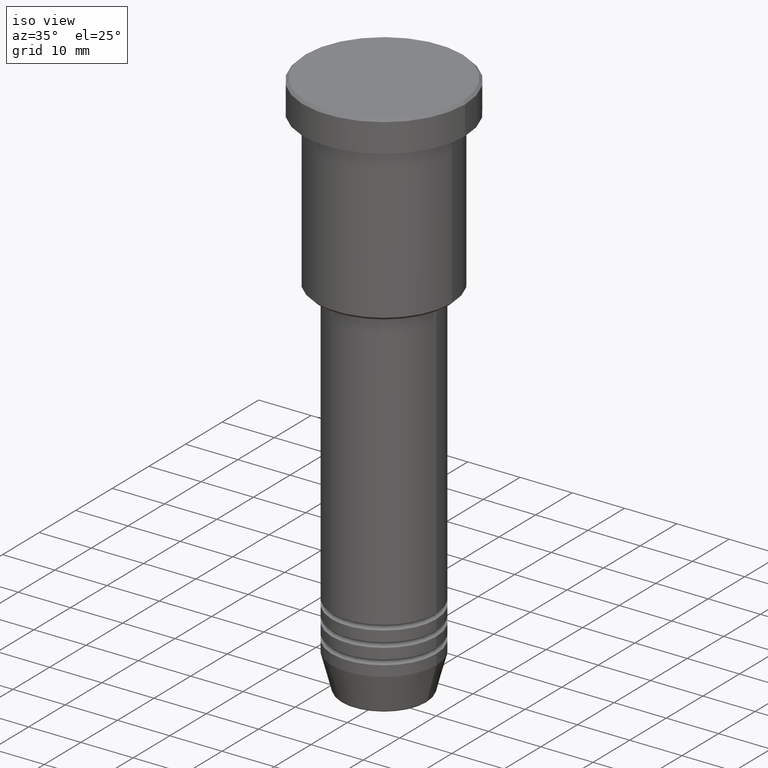
[diagram: clean part render]
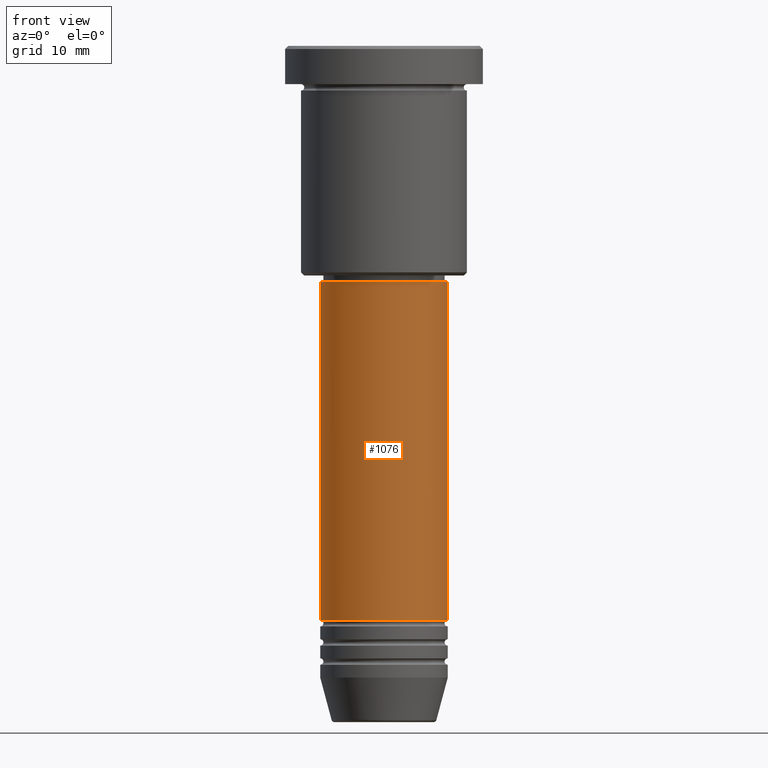
[diagram: tour spotlight — one face highlighted and labeled with its STEP entity id]
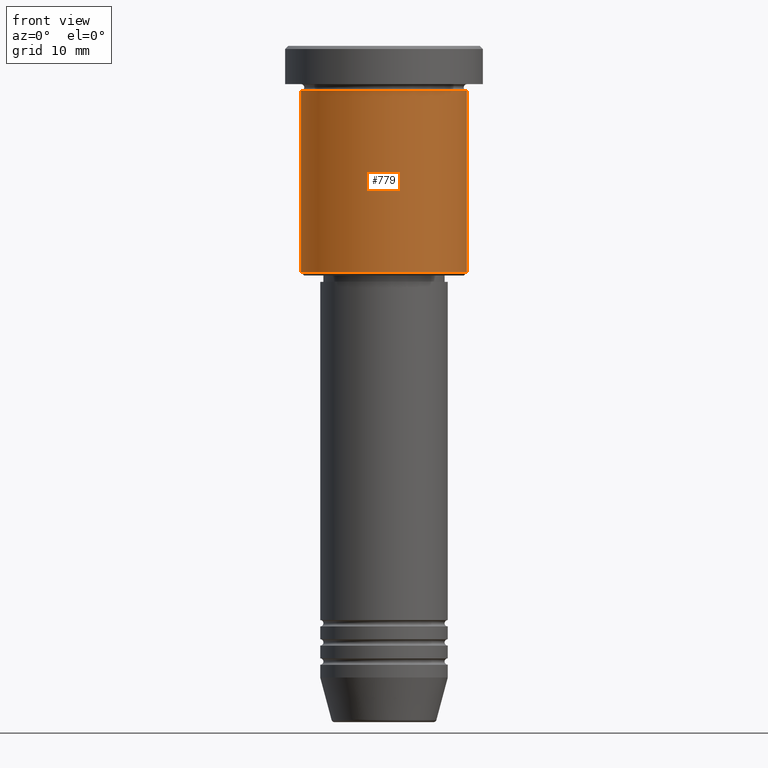
[diagram: tour spotlight — one face highlighted and labeled with its STEP entity id]
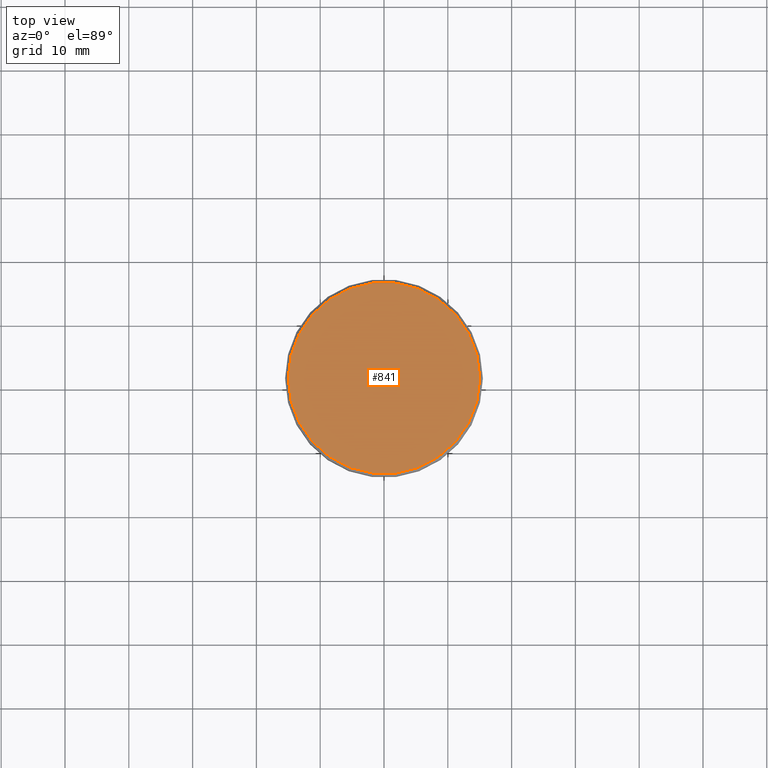
[diagram: tour spotlight — one face highlighted and labeled with its STEP entity id]
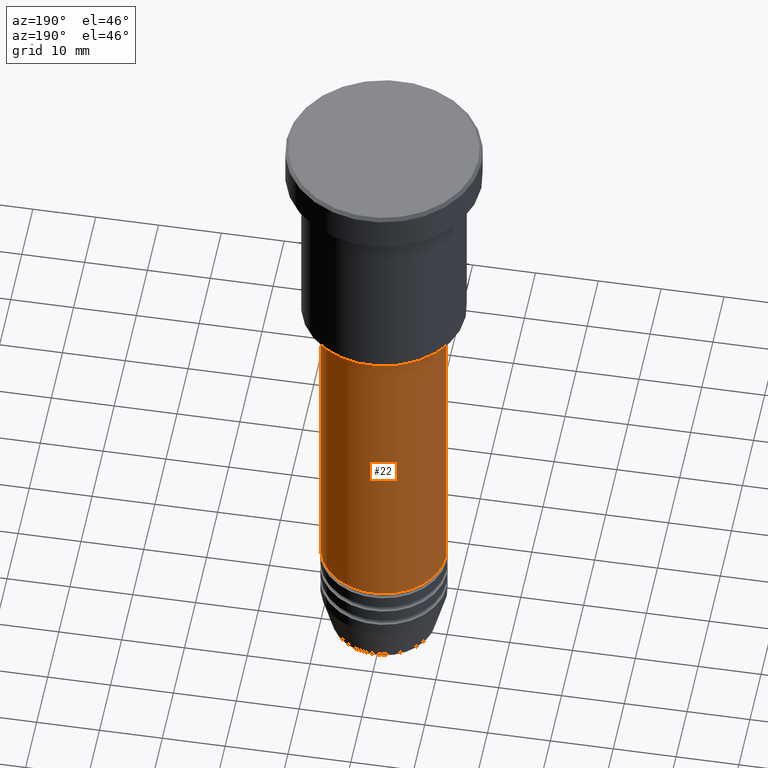
[diagram: tour spotlight — one face highlighted and labeled with its STEP entity id]
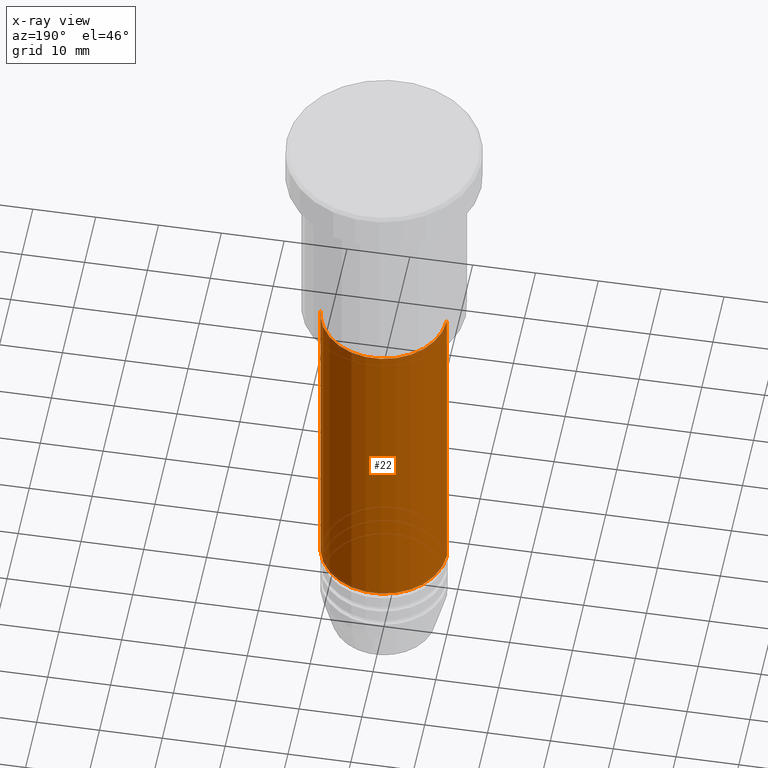
[diagram: x-ray of the same camera — body ghosted, this tour face saturated]
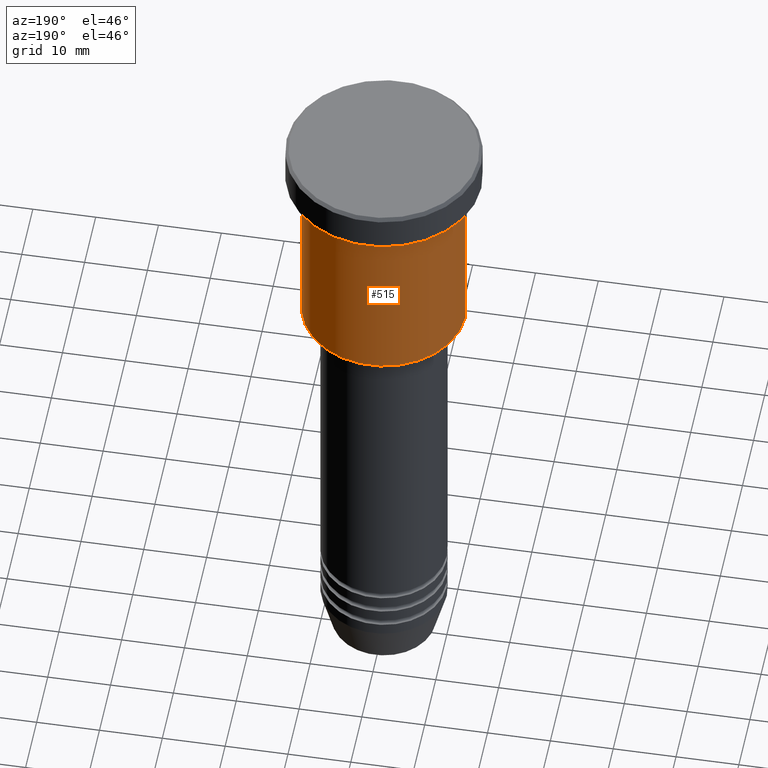
[diagram: tour spotlight — one face highlighted and labeled with its STEP entity id]
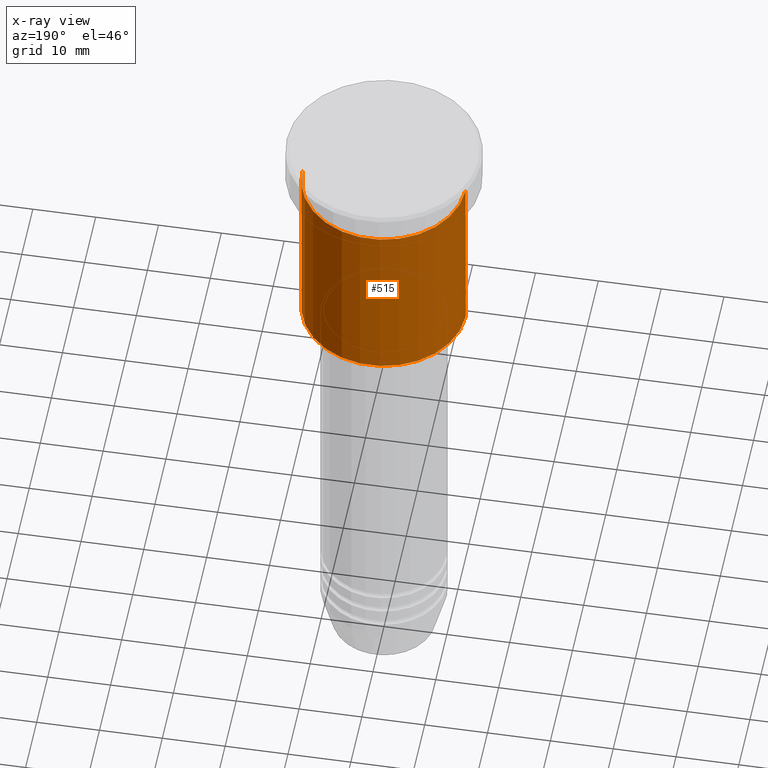
[diagram: x-ray of the same camera — body ghosted, this tour face saturated]
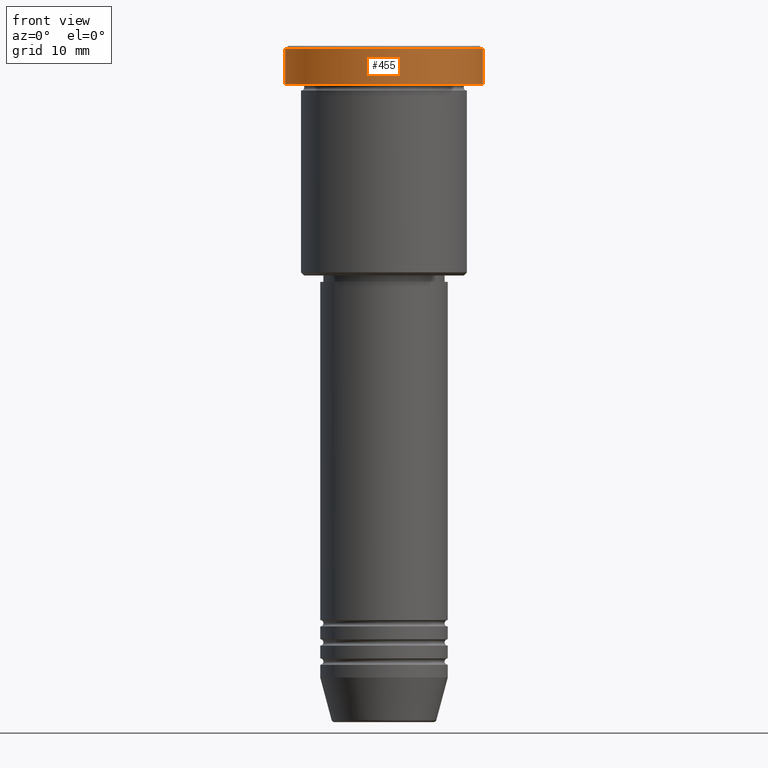
[diagram: tour spotlight — one face highlighted and labeled with its STEP entity id]
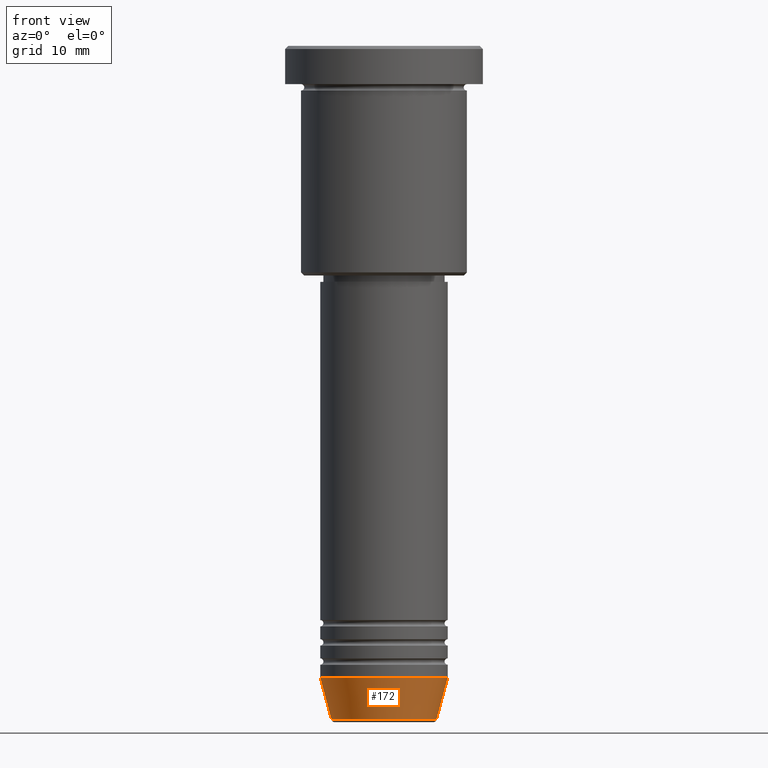
[diagram: tour spotlight — one face highlighted and labeled with its STEP entity id]
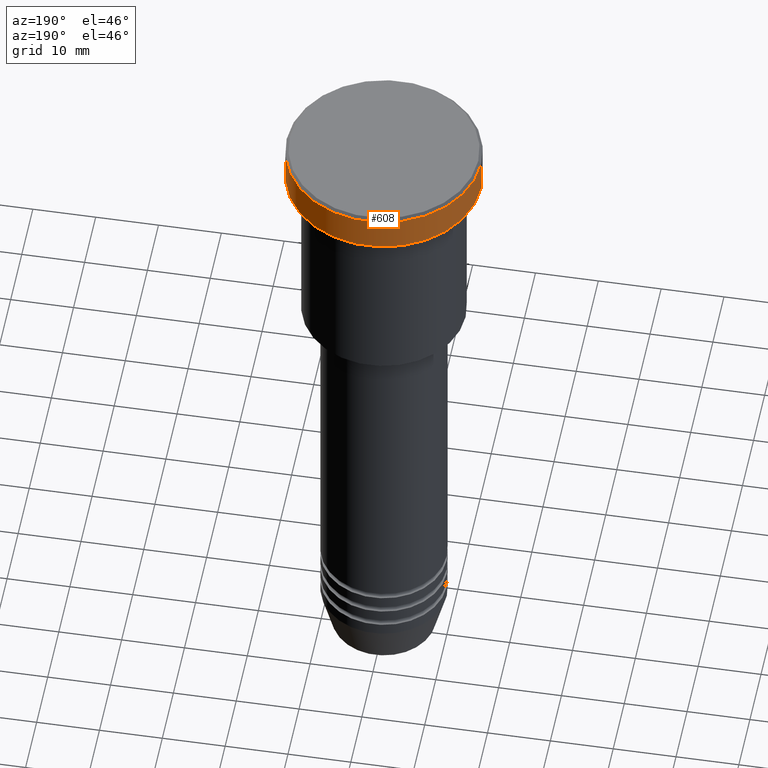
[diagram: tour spotlight — one face highlighted and labeled with its STEP entity id]
A machine part: a face-by-face anatomy tour. The part has 43 B-rep faces; the first image is the clean iso view, then the 8 largest visible faces are spotlighted one at a time (largest first), each with its STEP entity span.

Face 1 — front view, entity #1076. In plain terms, the highlighted cylindrical surface (partial cylindrical patch) has radius 10 mm, axis along (-0, -0, 1).
Definition (entity closure, byte-faithful):
#66 = VECTOR ( 'NONE', #270, 1000.000000000000000 ) ;
#100 = EDGE_CURVE ( 'NONE', #171, #427, #1174, .T. ) ;
#132 = CARTESIAN_POINT ( 'NONE',  ( -10.00000000000000000, 1.224646799147353256E-15, -89.99999999999997158 ) ) ;
#171 = VERTEX_POINT ( 'NONE', #132 ) ;
#238 = LINE ( 'NONE', #600, #357 ) ;
#270 = DIRECTION ( 'NONE',  ( -0.000000000000000000, -0.000000000000000000, 1.000000000000000000 ) ) ;
#337 = AXIS2_PLACEMENT_3D ( 'NONE', #383, #1111, #778 ) ;
#357 = VECTOR ( 'NONE', #1162, 1000.000000000000000 ) ;
#365 = LINE ( 'NONE', #1088, #66 ) ;
#383 = CARTESIAN_POINT ( 'NONE',  ( 0.000000000000000000, 0.000000000000000000, -37.00000000000000000 ) ) ;
#393 = CARTESIAN_POINT ( 'NONE',  ( 0.000000000000000000, 0.000000000000000000, -89.99999999999997158 ) ) ;
#398 = VERTEX_POINT ( 'NONE', #922 ) ;
#413 = CARTESIAN_POINT ( 'NONE',  ( 0.000000000000000000, 0.000000000000000000, 0.000000000000000000 ) ) ;
#426 = EDGE_CURVE ( 'NONE', #427, #1038, #365, .T. ) ;
#427 = VERTEX_POINT ( 'NONE', #838 ) ;
#441 = AXIS2_PLACEMENT_3D ( 'NONE', #413, #808, #685 ) ;
#472 = EDGE_CURVE ( 'NONE', #398, #1038, #897, .T. ) ;
#547 = ORIENTED_EDGE ( 'NONE', *, *, #676, .F. ) ;
#597 = CYLINDRICAL_SURFACE ( 'NONE', #441, 10.00000000000000000 ) ;
#600 = CARTESIAN_POINT ( 'NONE',  ( -10.00000000000000000, 1.224646799147353256E-15, 0.000000000000000000 ) ) ;
#639 = ORIENTED_EDGE ( 'NONE', *, *, #472, .F. ) ;
#676 = EDGE_CURVE ( 'NONE', #171, #398, #238, .T. ) ;
#678 = DIRECTION ( 'NONE',  ( -0.000000000000000000, -0.000000000000000000, 1.000000000000000000 ) ) ;
#683 = DIRECTION ( 'NONE',  ( 1.000000000000000000, 0.000000000000000000, 0.000000000000000000 ) ) ;
#685 = DIRECTION ( 'NONE',  ( 1.000000000000000000, 0.000000000000000000, 0.000000000000000000 ) ) ;
#778 = DIRECTION ( 'NONE',  ( 1.000000000000000000, 0.000000000000000000, 0.000000000000000000 ) ) ;
#808 = DIRECTION ( 'NONE',  ( -0.000000000000000000, -0.000000000000000000, 1.000000000000000000 ) ) ;
#838 = CARTESIAN_POINT ( 'NONE',  ( 10.00000000000000000, 0.000000000000000000, -89.99999999999997158 ) ) ;
#844 = AXIS2_PLACEMENT_3D ( 'NONE', #393, #678, #683 ) ;
#856 = CARTESIAN_POINT ( 'NONE',  ( 10.00000000000000000, 0.000000000000000000, -37.00000000000000000 ) ) ;
#897 = CIRCLE ( 'NONE', #337, 10.00000000000000000 ) ;
#906 = EDGE_LOOP ( 'NONE', ( #547, #1095, #1053, #639 ) ) ;
#922 = CARTESIAN_POINT ( 'NONE',  ( -10.00000000000000000, 1.224646799147353256E-15, -37.00000000000000000 ) ) ;
#977 = FACE_OUTER_BOUND ( 'NONE', #906, .T. ) ;
#1038 = VERTEX_POINT ( 'NONE', #856 ) ;
#1053 = ORIENTED_EDGE ( 'NONE', *, *, #426, .T. ) ;
#1076 = ADVANCED_FACE ( 'NONE', ( #977 ), #597, .T. ) ;
#1088 = CARTESIAN_POINT ( 'NONE',  ( 10.00000000000000000, 0.000000000000000000, 0.000000000000000000 ) ) ;
#1095 = ORIENTED_EDGE ( 'NONE', *, *, #100, .T. ) ;
#1111 = DIRECTION ( 'NONE',  ( -0.000000000000000000, -0.000000000000000000, 1.000000000000000000 ) ) ;
#1162 = DIRECTION ( 'NONE',  ( -0.000000000000000000, -0.000000000000000000, 1.000000000000000000 ) ) ;
#1174 = CIRCLE ( 'NONE', #844, 10.00000000000000000 ) ;

Face 2 — front view, entity #779. In plain terms, the highlighted cylindrical surface (partial cylindrical patch) has radius 13 mm, axis along (-0, -0, 1).
Definition (entity closure, byte-faithful):
#48 = CARTESIAN_POINT ( 'NONE',  ( -13.00000000000000000, 1.592040838891559095E-15, -35.49999999999999289 ) ) ;
#55 = VERTEX_POINT ( 'NONE', #1107 ) ;
#73 = EDGE_CURVE ( 'NONE', #55, #1122, #865, .T. ) ;
#90 = CYLINDRICAL_SURFACE ( 'NONE', #1082, 13.00000000000000000 ) ;
#110 = DIRECTION ( 'NONE',  ( 1.000000000000000000, 0.000000000000000000, 0.000000000000000000 ) ) ;
#166 = VERTEX_POINT ( 'NONE', #703 ) ;
#187 = CARTESIAN_POINT ( 'NONE',  ( 0.000000000000000000, 0.000000000000000000, -35.49999999999999289 ) ) ;
#194 = DIRECTION ( 'NONE',  ( -0.000000000000000000, -0.000000000000000000, 1.000000000000000000 ) ) ;
#271 = VERTEX_POINT ( 'NONE', #48 ) ;
#317 = AXIS2_PLACEMENT_3D ( 'NONE', #187, #1015, #680 ) ;
#331 = CARTESIAN_POINT ( 'NONE',  ( -13.00000000000000000, 1.592040838891559095E-15, 0.000000000000000000 ) ) ;
#336 = CARTESIAN_POINT ( 'NONE',  ( 13.00000000000000000, 0.000000000000000000, -6.999999999999995559 ) ) ;
#386 = ORIENTED_EDGE ( 'NONE', *, *, #1036, .F. ) ;
#407 = DIRECTION ( 'NONE',  ( -0.000000000000000000, -0.000000000000000000, 1.000000000000000000 ) ) ;
#414 = CIRCLE ( 'NONE', #317, 13.00000000000000000 ) ;
#419 = ORIENTED_EDGE ( 'NONE', *, *, #73, .T. ) ;
#467 = DIRECTION ( 'NONE',  ( -0.000000000000000000, -0.000000000000000000, 1.000000000000000000 ) ) ;
#494 = VECTOR ( 'NONE', #407, 1000.000000000000000 ) ;
#497 = ORIENTED_EDGE ( 'NONE', *, *, #1047, .T. ) ;
#534 = EDGE_LOOP ( 'NONE', ( #610, #497, #419, #386 ) ) ;
#610 = ORIENTED_EDGE ( 'NONE', *, *, #701, .F. ) ;
#626 = FACE_OUTER_BOUND ( 'NONE', #534, .T. ) ;
#660 = DIRECTION ( 'NONE',  ( -0.000000000000000000, -0.000000000000000000, 1.000000000000000000 ) ) ;
#680 = DIRECTION ( 'NONE',  ( -1.000000000000000000, 0.000000000000000000, 0.000000000000000000 ) ) ;
#692 = CIRCLE ( 'NONE', #847, 13.00000000000000000 ) ;
#701 = EDGE_CURVE ( 'NONE', #271, #166, #803, .T. ) ;
#703 = CARTESIAN_POINT ( 'NONE',  ( -13.00000000000000000, 1.592040838891559095E-15, -6.999999999999995559 ) ) ;
#770 = VECTOR ( 'NONE', #194, 1000.000000000000000 ) ;
#779 = ADVANCED_FACE ( 'NONE', ( #626 ), #90, .T. ) ;
#803 = LINE ( 'NONE', #331, #494 ) ;
#847 = AXIS2_PLACEMENT_3D ( 'NONE', #938, #660, #110 ) ;
#865 = LINE ( 'NONE', #944, #770 ) ;
#938 = CARTESIAN_POINT ( 'NONE',  ( 0.000000000000000000, 0.000000000000000000, -6.999999999999995559 ) ) ;
#944 = CARTESIAN_POINT ( 'NONE',  ( 13.00000000000000000, 0.000000000000000000, 0.000000000000000000 ) ) ;
#1015 = DIRECTION ( 'NONE',  ( -0.000000000000000000, -0.000000000000000000, 1.000000000000000000 ) ) ;
#1036 = EDGE_CURVE ( 'NONE', #166, #1122, #692, .T. ) ;
#1047 = EDGE_CURVE ( 'NONE', #271, #55, #414, .T. ) ;
#1082 = AXIS2_PLACEMENT_3D ( 'NONE', #1172, #467, #1084 ) ;
#1084 = DIRECTION ( 'NONE',  ( 1.000000000000000000, 0.000000000000000000, 0.000000000000000000 ) ) ;
#1107 = CARTESIAN_POINT ( 'NONE',  ( 13.00000000000000000, 0.000000000000000000, -35.49999999999999289 ) ) ;
#1122 = VERTEX_POINT ( 'NONE', #336 ) ;
#1172 = CARTESIAN_POINT ( 'NONE',  ( 0.000000000000000000, 0.000000000000000000, 0.000000000000000000 ) ) ;

Face 3 — top view, entity #841. In plain terms, the highlighted planar face has unit normal (0, -0, 1).
Definition (entity closure, byte-faithful):
#14 = CARTESIAN_POINT ( 'NONE',  ( -15.00000000000000000, 0.000000000000000000, 0.000000000000000000 ) ) ;
#18 = EDGE_LOOP ( 'NONE', ( #480, #1170 ) ) ;
#141 = CIRCLE ( 'NONE', #278, 15.00000000000000000 ) ;
#244 = DIRECTION ( 'NONE',  ( 1.000000000000000000, 0.000000000000000000, 0.000000000000000000 ) ) ;
#274 = DIRECTION ( 'NONE',  ( 0.000000000000000000, -0.000000000000000000, 1.000000000000000000 ) ) ;
#278 = AXIS2_PLACEMENT_3D ( 'NONE', #939, #307, #848 ) ;
#280 = AXIS2_PLACEMENT_3D ( 'NONE', #644, #274, #244 ) ;
#304 = CARTESIAN_POINT ( 'NONE',  ( 0.000000000000000000, 0.000000000000000000, 0.000000000000000000 ) ) ;
#307 = DIRECTION ( 'NONE',  ( -0.000000000000000000, -0.000000000000000000, 1.000000000000000000 ) ) ;
#395 = CIRCLE ( 'NONE', #1007, 15.00000000000000000 ) ;
#450 = EDGE_CURVE ( 'NONE', #709, #454, #141, .T. ) ;
#454 = VERTEX_POINT ( 'NONE', #14 ) ;
#480 = ORIENTED_EDGE ( 'NONE', *, *, #1028, .T. ) ;
#644 = CARTESIAN_POINT ( 'NONE',  ( 0.000000000000000000, 0.000000000000000000, 0.000000000000000000 ) ) ;
#656 = DIRECTION ( 'NONE',  ( 1.000000000000000000, 0.000000000000000000, 0.000000000000000000 ) ) ;
#709 = VERTEX_POINT ( 'NONE', #789 ) ;
#789 = CARTESIAN_POINT ( 'NONE',  ( 15.00000000000000000, 1.867586368699713376E-15, 0.000000000000000000 ) ) ;
#841 = ADVANCED_FACE ( 'NONE', ( #982 ), #1092, .T. ) ;
#848 = DIRECTION ( 'NONE',  ( 1.000000000000000000, 0.000000000000000000, 0.000000000000000000 ) ) ;
#939 = CARTESIAN_POINT ( 'NONE',  ( 0.000000000000000000, 0.000000000000000000, 0.000000000000000000 ) ) ;
#982 = FACE_OUTER_BOUND ( 'NONE', #18, .T. ) ;
#1007 = AXIS2_PLACEMENT_3D ( 'NONE', #304, #1023, #656 ) ;
#1023 = DIRECTION ( 'NONE',  ( -0.000000000000000000, -0.000000000000000000, 1.000000000000000000 ) ) ;
#1028 = EDGE_CURVE ( 'NONE', #454, #709, #395, .T. ) ;
#1092 = PLANE ( 'NONE',  #280 ) ;
#1170 = ORIENTED_EDGE ( 'NONE', *, *, #450, .T. ) ;

Face 4 — auxiliary view, entity #22. An x-ray twin of the same camera follows (body ghosted, this face saturated) — the face is partly hidden behind the body. In plain terms, the highlighted cylindrical surface (partial cylindrical patch) has radius 10 mm, axis along (-0, -0, 1).
Definition (entity closure, byte-faithful):
#15 = DIRECTION ( 'NONE',  ( 1.000000000000000000, 0.000000000000000000, 0.000000000000000000 ) ) ;
#16 = EDGE_CURVE ( 'NONE', #427, #171, #548, .T. ) ;
#22 = ADVANCED_FACE ( 'NONE', ( #690 ), #400, .T. ) ;
#45 = EDGE_CURVE ( 'NONE', #1038, #398, #666, .T. ) ;
#66 = VECTOR ( 'NONE', #270, 1000.000000000000000 ) ;
#109 = DIRECTION ( 'NONE',  ( -0.000000000000000000, -0.000000000000000000, 1.000000000000000000 ) ) ;
#115 = DIRECTION ( 'NONE',  ( 1.000000000000000000, 0.000000000000000000, 0.000000000000000000 ) ) ;
#132 = CARTESIAN_POINT ( 'NONE',  ( -10.00000000000000000, 1.224646799147353256E-15, -89.99999999999997158 ) ) ;
#135 = AXIS2_PLACEMENT_3D ( 'NONE', #211, #858, #957 ) ;
#171 = VERTEX_POINT ( 'NONE', #132 ) ;
#211 = CARTESIAN_POINT ( 'NONE',  ( 0.000000000000000000, 0.000000000000000000, -37.00000000000000000 ) ) ;
#238 = LINE ( 'NONE', #600, #357 ) ;
#270 = DIRECTION ( 'NONE',  ( -0.000000000000000000, -0.000000000000000000, 1.000000000000000000 ) ) ;
#335 = AXIS2_PLACEMENT_3D ( 'NONE', #850, #491, #115 ) ;
#357 = VECTOR ( 'NONE', #1162, 1000.000000000000000 ) ;
#365 = LINE ( 'NONE', #1088, #66 ) ;
#398 = VERTEX_POINT ( 'NONE', #922 ) ;
#400 = CYLINDRICAL_SURFACE ( 'NONE', #1094, 10.00000000000000000 ) ;
#426 = EDGE_CURVE ( 'NONE', #427, #1038, #365, .T. ) ;
#427 = VERTEX_POINT ( 'NONE', #838 ) ;
#491 = DIRECTION ( 'NONE',  ( -0.000000000000000000, -0.000000000000000000, 1.000000000000000000 ) ) ;
#548 = CIRCLE ( 'NONE', #335, 10.00000000000000000 ) ;
#564 = ORIENTED_EDGE ( 'NONE', *, *, #16, .T. ) ;
#600 = CARTESIAN_POINT ( 'NONE',  ( -10.00000000000000000, 1.224646799147353256E-15, 0.000000000000000000 ) ) ;
#666 = CIRCLE ( 'NONE', #135, 10.00000000000000000 ) ;
#676 = EDGE_CURVE ( 'NONE', #171, #398, #238, .T. ) ;
#687 = ORIENTED_EDGE ( 'NONE', *, *, #676, .T. ) ;
#690 = FACE_OUTER_BOUND ( 'NONE', #727, .T. ) ;
#727 = EDGE_LOOP ( 'NONE', ( #564, #687, #843, #1144 ) ) ;
#838 = CARTESIAN_POINT ( 'NONE',  ( 10.00000000000000000, 0.000000000000000000, -89.99999999999997158 ) ) ;
#843 = ORIENTED_EDGE ( 'NONE', *, *, #45, .F. ) ;
#850 = CARTESIAN_POINT ( 'NONE',  ( 0.000000000000000000, 0.000000000000000000, -89.99999999999997158 ) ) ;
#856 = CARTESIAN_POINT ( 'NONE',  ( 10.00000000000000000, 0.000000000000000000, -37.00000000000000000 ) ) ;
#858 = DIRECTION ( 'NONE',  ( -0.000000000000000000, -0.000000000000000000, 1.000000000000000000 ) ) ;
#922 = CARTESIAN_POINT ( 'NONE',  ( -10.00000000000000000, 1.224646799147353256E-15, -37.00000000000000000 ) ) ;
#957 = DIRECTION ( 'NONE',  ( 1.000000000000000000, 0.000000000000000000, 0.000000000000000000 ) ) ;
#1038 = VERTEX_POINT ( 'NONE', #856 ) ;
#1088 = CARTESIAN_POINT ( 'NONE',  ( 10.00000000000000000, 0.000000000000000000, 0.000000000000000000 ) ) ;
#1094 = AXIS2_PLACEMENT_3D ( 'NONE', #1125, #109, #15 ) ;
#1125 = CARTESIAN_POINT ( 'NONE',  ( 0.000000000000000000, 0.000000000000000000, 0.000000000000000000 ) ) ;
#1144 = ORIENTED_EDGE ( 'NONE', *, *, #426, .F. ) ;
#1162 = DIRECTION ( 'NONE',  ( -0.000000000000000000, -0.000000000000000000, 1.000000000000000000 ) ) ;

Face 5 — auxiliary view, entity #515. An x-ray twin of the same camera follows (body ghosted, this face saturated) — the face is partly hidden behind the body. In plain terms, the highlighted cylindrical surface (partial cylindrical patch) has radius 13 mm, axis along (-0, -0, 1).
Definition (entity closure, byte-faithful):
#34 = DIRECTION ( 'NONE',  ( -0.000000000000000000, -0.000000000000000000, 1.000000000000000000 ) ) ;
#48 = CARTESIAN_POINT ( 'NONE',  ( -13.00000000000000000, 1.592040838891559095E-15, -35.49999999999999289 ) ) ;
#55 = VERTEX_POINT ( 'NONE', #1107 ) ;
#73 = EDGE_CURVE ( 'NONE', #55, #1122, #865, .T. ) ;
#86 = ORIENTED_EDGE ( 'NONE', *, *, #440, .T. ) ;
#106 = CIRCLE ( 'NONE', #794, 13.00000000000000000 ) ;
#166 = VERTEX_POINT ( 'NONE', #703 ) ;
#186 = ORIENTED_EDGE ( 'NONE', *, *, #1171, .F. ) ;
#194 = DIRECTION ( 'NONE',  ( -0.000000000000000000, -0.000000000000000000, 1.000000000000000000 ) ) ;
#210 = DIRECTION ( 'NONE',  ( -1.000000000000000000, 0.000000000000000000, 0.000000000000000000 ) ) ;
#271 = VERTEX_POINT ( 'NONE', #48 ) ;
#289 = ORIENTED_EDGE ( 'NONE', *, *, #701, .T. ) ;
#295 = CIRCLE ( 'NONE', #589, 13.00000000000000000 ) ;
#318 = ORIENTED_EDGE ( 'NONE', *, *, #73, .F. ) ;
#331 = CARTESIAN_POINT ( 'NONE',  ( -13.00000000000000000, 1.592040838891559095E-15, 0.000000000000000000 ) ) ;
#336 = CARTESIAN_POINT ( 'NONE',  ( 13.00000000000000000, 0.000000000000000000, -6.999999999999995559 ) ) ;
#407 = DIRECTION ( 'NONE',  ( -0.000000000000000000, -0.000000000000000000, 1.000000000000000000 ) ) ;
#415 = EDGE_LOOP ( 'NONE', ( #86, #289, #186, #318 ) ) ;
#421 = DIRECTION ( 'NONE',  ( -0.000000000000000000, -0.000000000000000000, 1.000000000000000000 ) ) ;
#440 = EDGE_CURVE ( 'NONE', #55, #271, #295, .T. ) ;
#489 = FACE_OUTER_BOUND ( 'NONE', #415, .T. ) ;
#494 = VECTOR ( 'NONE', #407, 1000.000000000000000 ) ;
#515 = ADVANCED_FACE ( 'NONE', ( #489 ), #857, .T. ) ;
#586 = DIRECTION ( 'NONE',  ( -0.000000000000000000, -0.000000000000000000, 1.000000000000000000 ) ) ;
#589 = AXIS2_PLACEMENT_3D ( 'NONE', #1105, #586, #210 ) ;
#669 = CARTESIAN_POINT ( 'NONE',  ( 0.000000000000000000, 0.000000000000000000, 0.000000000000000000 ) ) ;
#701 = EDGE_CURVE ( 'NONE', #271, #166, #803, .T. ) ;
#703 = CARTESIAN_POINT ( 'NONE',  ( -13.00000000000000000, 1.592040838891559095E-15, -6.999999999999995559 ) ) ;
#770 = VECTOR ( 'NONE', #194, 1000.000000000000000 ) ;
#794 = AXIS2_PLACEMENT_3D ( 'NONE', #1046, #421, #1131 ) ;
#803 = LINE ( 'NONE', #331, #494 ) ;
#857 = CYLINDRICAL_SURFACE ( 'NONE', #1156, 13.00000000000000000 ) ;
#865 = LINE ( 'NONE', #944, #770 ) ;
#944 = CARTESIAN_POINT ( 'NONE',  ( 13.00000000000000000, 0.000000000000000000, 0.000000000000000000 ) ) ;
#1018 = DIRECTION ( 'NONE',  ( 1.000000000000000000, 0.000000000000000000, 0.000000000000000000 ) ) ;
#1046 = CARTESIAN_POINT ( 'NONE',  ( 0.000000000000000000, 0.000000000000000000, -6.999999999999995559 ) ) ;
#1105 = CARTESIAN_POINT ( 'NONE',  ( 0.000000000000000000, 0.000000000000000000, -35.49999999999999289 ) ) ;
#1107 = CARTESIAN_POINT ( 'NONE',  ( 13.00000000000000000, 0.000000000000000000, -35.49999999999999289 ) ) ;
#1122 = VERTEX_POINT ( 'NONE', #336 ) ;
#1131 = DIRECTION ( 'NONE',  ( 1.000000000000000000, 0.000000000000000000, 0.000000000000000000 ) ) ;
#1156 = AXIS2_PLACEMENT_3D ( 'NONE', #669, #34, #1018 ) ;
#1171 = EDGE_CURVE ( 'NONE', #1122, #166, #106, .T. ) ;

Face 6 — front view, entity #455. In plain terms, the highlighted cylindrical surface (partial cylindrical patch) has radius 15.5 mm, axis along (-0, -0, 1).
Definition (entity closure, byte-faithful):
#60 = DIRECTION ( 'NONE',  ( -0.000000000000000000, -0.000000000000000000, 1.000000000000000000 ) ) ;
#68 = VERTEX_POINT ( 'NONE', #308 ) ;
#127 = DIRECTION ( 'NONE',  ( -0.000000000000000000, -0.000000000000000000, 1.000000000000000000 ) ) ;
#129 = ORIENTED_EDGE ( 'NONE', *, *, #207, .F. ) ;
#150 = DIRECTION ( 'NONE',  ( 1.000000000000000000, 0.000000000000000000, 0.000000000000000000 ) ) ;
#207 = EDGE_CURVE ( 'NONE', #378, #930, #333, .T. ) ;
#291 = ORIENTED_EDGE ( 'NONE', *, *, #654, .T. ) ;
#293 = CARTESIAN_POINT ( 'NONE',  ( 0.000000000000000000, 0.000000000000000000, 0.000000000000000000 ) ) ;
#308 = CARTESIAN_POINT ( 'NONE',  ( 15.50000000000000000, 0.000000000000000000, -0.4999999999999987232 ) ) ;
#325 = CARTESIAN_POINT ( 'NONE',  ( 0.000000000000000000, 0.000000000000000000, -5.999999999999995559 ) ) ;
#333 = LINE ( 'NONE', #720, #458 ) ;
#351 = ORIENTED_EDGE ( 'NONE', *, *, #874, .T. ) ;
#378 = VERTEX_POINT ( 'NONE', #729 ) ;
#439 = AXIS2_PLACEMENT_3D ( 'NONE', #902, #741, #1087 ) ;
#455 = ADVANCED_FACE ( 'NONE', ( #493 ), #950, .T. ) ;
#458 = VECTOR ( 'NONE', #60, 1000.000000000000000 ) ;
#493 = FACE_OUTER_BOUND ( 'NONE', #717, .T. ) ;
#504 = CARTESIAN_POINT ( 'NONE',  ( 15.50000000000000000, 0.000000000000000000, -5.999999999999995559 ) ) ;
#521 = DIRECTION ( 'NONE',  ( -0.000000000000000000, -0.000000000000000000, 1.000000000000000000 ) ) ;
#553 = CIRCLE ( 'NONE', #439, 15.50000000000000000 ) ;
#563 = DIRECTION ( 'NONE',  ( 1.000000000000000000, 0.000000000000000000, 0.000000000000000000 ) ) ;
#654 = EDGE_CURVE ( 'NONE', #378, #1140, #986, .T. ) ;
#665 = EDGE_CURVE ( 'NONE', #1140, #68, #816, .T. ) ;
#717 = EDGE_LOOP ( 'NONE', ( #129, #291, #949, #351 ) ) ;
#720 = CARTESIAN_POINT ( 'NONE',  ( -15.50000000000000000, 1.898202538678397557E-15, 0.000000000000000000 ) ) ;
#729 = CARTESIAN_POINT ( 'NONE',  ( -15.50000000000000000, 1.898202538678397557E-15, -5.999999999999995559 ) ) ;
#741 = DIRECTION ( 'NONE',  ( 0.000000000000000000, 0.000000000000000000, -1.000000000000000000 ) ) ;
#816 = LINE ( 'NONE', #881, #1061 ) ;
#846 = AXIS2_PLACEMENT_3D ( 'NONE', #293, #862, #563 ) ;
#852 = CARTESIAN_POINT ( 'NONE',  ( -15.50000000000000000, 1.898202538678397557E-15, -0.4999999999999987232 ) ) ;
#862 = DIRECTION ( 'NONE',  ( -0.000000000000000000, -0.000000000000000000, 1.000000000000000000 ) ) ;
#874 = EDGE_CURVE ( 'NONE', #68, #930, #553, .T. ) ;
#881 = CARTESIAN_POINT ( 'NONE',  ( 15.50000000000000000, 0.000000000000000000, 0.000000000000000000 ) ) ;
#902 = CARTESIAN_POINT ( 'NONE',  ( 0.000000000000000000, 0.000000000000000000, -0.4999999999999987232 ) ) ;
#918 = AXIS2_PLACEMENT_3D ( 'NONE', #325, #521, #150 ) ;
#930 = VERTEX_POINT ( 'NONE', #852 ) ;
#949 = ORIENTED_EDGE ( 'NONE', *, *, #665, .T. ) ;
#950 = CYLINDRICAL_SURFACE ( 'NONE', #846, 15.50000000000000000 ) ;
#986 = CIRCLE ( 'NONE', #918, 15.50000000000000000 ) ;
#1061 = VECTOR ( 'NONE', #127, 1000.000000000000000 ) ;
#1087 = DIRECTION ( 'NONE',  ( 1.000000000000000000, 0.000000000000000000, 0.000000000000000000 ) ) ;
#1140 = VERTEX_POINT ( 'NONE', #504 ) ;

Face 7 — front view, entity #172. In plain terms, the highlighted conical surface has half-angle 15 deg.
Definition (entity closure, byte-faithful):
#20 = EDGE_CURVE ( 'NONE', #575, #269, #894, .T. ) ;
#26 = AXIS2_PLACEMENT_3D ( 'NONE', #634, #157, #996 ) ;
#31 = LINE ( 'NONE', #399, #436 ) ;
#61 = ORIENTED_EDGE ( 'NONE', *, *, #20, .T. ) ;
#71 = CARTESIAN_POINT ( 'NONE',  ( 10.00000000000000000, 0.000000000000000000, -99.00000000000000000 ) ) ;
#157 = DIRECTION ( 'NONE',  ( -0.000000000000000000, -0.000000000000000000, 1.000000000000000000 ) ) ;
#172 = ADVANCED_FACE ( 'NONE', ( #1062 ), #567, .T. ) ;
#192 = EDGE_CURVE ( 'NONE', #269, #879, #408, .T. ) ;
#240 = CARTESIAN_POINT ( 'NONE',  ( 10.00000000000000000, 0.000000000000000000, -99.00000000000000000 ) ) ;
#250 = AXIS2_PLACEMENT_3D ( 'NONE', #1129, #1120, #288 ) ;
#269 = VERTEX_POINT ( 'NONE', #431 ) ;
#288 = DIRECTION ( 'NONE',  ( 1.000000000000000000, 0.000000000000000000, 0.000000000000000000 ) ) ;
#313 = CIRCLE ( 'NONE', #26, 10.00000000000000000 ) ;
#327 = EDGE_CURVE ( 'NONE', #628, #879, #313, .T. ) ;
#399 = CARTESIAN_POINT ( 'NONE',  ( -10.00000000000000000, 1.224646799147353256E-15, -99.00000000000000000 ) ) ;
#408 = LINE ( 'NONE', #240, #649 ) ;
#431 = CARTESIAN_POINT ( 'NONE',  ( 8.223655072137191269, 0.000000000000000000, -105.6294095225512564 ) ) ;
#436 = VECTOR ( 'NONE', #1026, 1000.000000000000000 ) ;
#449 = ORIENTED_EDGE ( 'NONE', *, *, #327, .F. ) ;
#502 = EDGE_CURVE ( 'NONE', #575, #628, #31, .T. ) ;
#522 = DIRECTION ( 'NONE',  ( -0.000000000000000000, -0.000000000000000000, 1.000000000000000000 ) ) ;
#567 = CONICAL_SURFACE ( 'NONE', #1060, 10.00000000000000000, 0.2617993877991500740 ) ;
#575 = VERTEX_POINT ( 'NONE', #677 ) ;
#593 = EDGE_LOOP ( 'NONE', ( #948, #61, #998, #449 ) ) ;
#623 = DIRECTION ( 'NONE',  ( 1.000000000000000000, 0.000000000000000000, 0.000000000000000000 ) ) ;
#628 = VERTEX_POINT ( 'NONE', #965 ) ;
#634 = CARTESIAN_POINT ( 'NONE',  ( 0.000000000000000000, 0.000000000000000000, -99.00000000000000000 ) ) ;
#649 = VECTOR ( 'NONE', #1150, 1000.000000000000000 ) ;
#677 = CARTESIAN_POINT ( 'NONE',  ( -8.223655072137191269, 1.115877042642912054E-15, -105.6294095225512564 ) ) ;
#879 = VERTEX_POINT ( 'NONE', #71 ) ;
#894 = CIRCLE ( 'NONE', #250, 8.223655072137191269 ) ;
#948 = ORIENTED_EDGE ( 'NONE', *, *, #502, .F. ) ;
#965 = CARTESIAN_POINT ( 'NONE',  ( -10.00000000000000000, 1.224646799147353256E-15, -99.00000000000000000 ) ) ;
#967 = CARTESIAN_POINT ( 'NONE',  ( 0.000000000000000000, 0.000000000000000000, -99.00000000000000000 ) ) ;
#996 = DIRECTION ( 'NONE',  ( 1.000000000000000000, 0.000000000000000000, 0.000000000000000000 ) ) ;
#998 = ORIENTED_EDGE ( 'NONE', *, *, #192, .T. ) ;
#1026 = DIRECTION ( 'NONE',  ( -0.2588190451025213501, 3.169619151431772337E-17, 0.9659258262890680902 ) ) ;
#1060 = AXIS2_PLACEMENT_3D ( 'NONE', #967, #522, #623 ) ;
#1062 = FACE_OUTER_BOUND ( 'NONE', #593, .T. ) ;
#1120 = DIRECTION ( 'NONE',  ( -0.000000000000000000, -0.000000000000000000, 1.000000000000000000 ) ) ;
#1129 = CARTESIAN_POINT ( 'NONE',  ( 0.000000000000000000, 0.000000000000000000, -105.6294095225512564 ) ) ;
#1150 = DIRECTION ( 'NONE',  ( 0.2588190451025213501, 0.000000000000000000, 0.9659258262890680902 ) ) ;

Face 8 — auxiliary view, entity #608. In plain terms, the highlighted cylindrical surface (partial cylindrical patch) has radius 15.5 mm, axis along (-0, -0, 1).
Definition (entity closure, byte-faithful):
#24 = DIRECTION ( 'NONE',  ( -0.000000000000000000, -0.000000000000000000, 1.000000000000000000 ) ) ;
#60 = DIRECTION ( 'NONE',  ( -0.000000000000000000, -0.000000000000000000, 1.000000000000000000 ) ) ;
#67 = AXIS2_PLACEMENT_3D ( 'NONE', #78, #363, #1008 ) ;
#68 = VERTEX_POINT ( 'NONE', #308 ) ;
#78 = CARTESIAN_POINT ( 'NONE',  ( 0.000000000000000000, 0.000000000000000000, -0.4999999999999987232 ) ) ;
#127 = DIRECTION ( 'NONE',  ( -0.000000000000000000, -0.000000000000000000, 1.000000000000000000 ) ) ;
#140 = FACE_OUTER_BOUND ( 'NONE', #658, .T. ) ;
#191 = ORIENTED_EDGE ( 'NONE', *, *, #484, .T. ) ;
#207 = EDGE_CURVE ( 'NONE', #378, #930, #333, .T. ) ;
#227 = CARTESIAN_POINT ( 'NONE',  ( 0.000000000000000000, 0.000000000000000000, 0.000000000000000000 ) ) ;
#287 = CARTESIAN_POINT ( 'NONE',  ( 0.000000000000000000, 0.000000000000000000, -5.999999999999995559 ) ) ;
#308 = CARTESIAN_POINT ( 'NONE',  ( 15.50000000000000000, 0.000000000000000000, -0.4999999999999987232 ) ) ;
#333 = LINE ( 'NONE', #720, #458 ) ;
#363 = DIRECTION ( 'NONE',  ( 0.000000000000000000, 0.000000000000000000, -1.000000000000000000 ) ) ;
#378 = VERTEX_POINT ( 'NONE', #729 ) ;
#412 = CIRCLE ( 'NONE', #951, 15.50000000000000000 ) ;
#458 = VECTOR ( 'NONE', #60, 1000.000000000000000 ) ;
#484 = EDGE_CURVE ( 'NONE', #1140, #378, #412, .T. ) ;
#504 = CARTESIAN_POINT ( 'NONE',  ( 15.50000000000000000, 0.000000000000000000, -5.999999999999995559 ) ) ;
#525 = DIRECTION ( 'NONE',  ( -0.000000000000000000, -0.000000000000000000, 1.000000000000000000 ) ) ;
#608 = ADVANCED_FACE ( 'NONE', ( #140 ), #892, .T. ) ;
#658 = EDGE_LOOP ( 'NONE', ( #191, #1070, #1017, #681 ) ) ;
#662 = DIRECTION ( 'NONE',  ( 1.000000000000000000, 0.000000000000000000, 0.000000000000000000 ) ) ;
#665 = EDGE_CURVE ( 'NONE', #1140, #68, #816, .T. ) ;
#671 = AXIS2_PLACEMENT_3D ( 'NONE', #227, #525, #887 ) ;
#681 = ORIENTED_EDGE ( 'NONE', *, *, #665, .F. ) ;
#720 = CARTESIAN_POINT ( 'NONE',  ( -15.50000000000000000, 1.898202538678397557E-15, 0.000000000000000000 ) ) ;
#729 = CARTESIAN_POINT ( 'NONE',  ( -15.50000000000000000, 1.898202538678397557E-15, -5.999999999999995559 ) ) ;
#816 = LINE ( 'NONE', #881, #1061 ) ;
#852 = CARTESIAN_POINT ( 'NONE',  ( -15.50000000000000000, 1.898202538678397557E-15, -0.4999999999999987232 ) ) ;
#860 = EDGE_CURVE ( 'NONE', #930, #68, #952, .T. ) ;
#881 = CARTESIAN_POINT ( 'NONE',  ( 15.50000000000000000, 0.000000000000000000, 0.000000000000000000 ) ) ;
#887 = DIRECTION ( 'NONE',  ( 1.000000000000000000, 0.000000000000000000, 0.000000000000000000 ) ) ;
#892 = CYLINDRICAL_SURFACE ( 'NONE', #671, 15.50000000000000000 ) ;
#930 = VERTEX_POINT ( 'NONE', #852 ) ;
#951 = AXIS2_PLACEMENT_3D ( 'NONE', #287, #24, #662 ) ;
#952 = CIRCLE ( 'NONE', #67, 15.50000000000000000 ) ;
#1008 = DIRECTION ( 'NONE',  ( 1.000000000000000000, 0.000000000000000000, 0.000000000000000000 ) ) ;
#1017 = ORIENTED_EDGE ( 'NONE', *, *, #860, .T. ) ;
#1061 = VECTOR ( 'NONE', #127, 1000.000000000000000 ) ;
#1070 = ORIENTED_EDGE ( 'NONE', *, *, #207, .T. ) ;
#1140 = VERTEX_POINT ( 'NONE', #504 ) ;